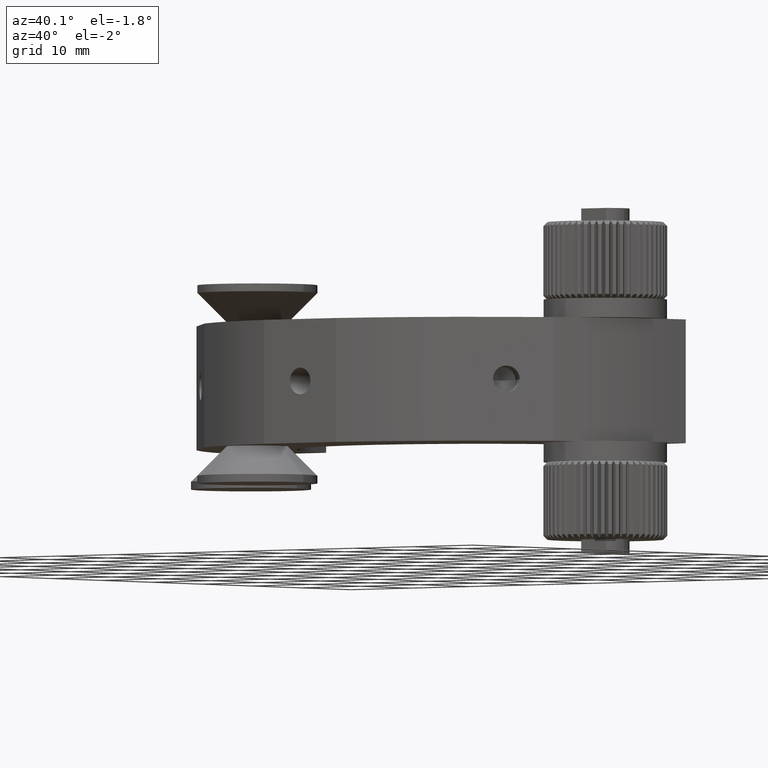
[diagram: clean part render]
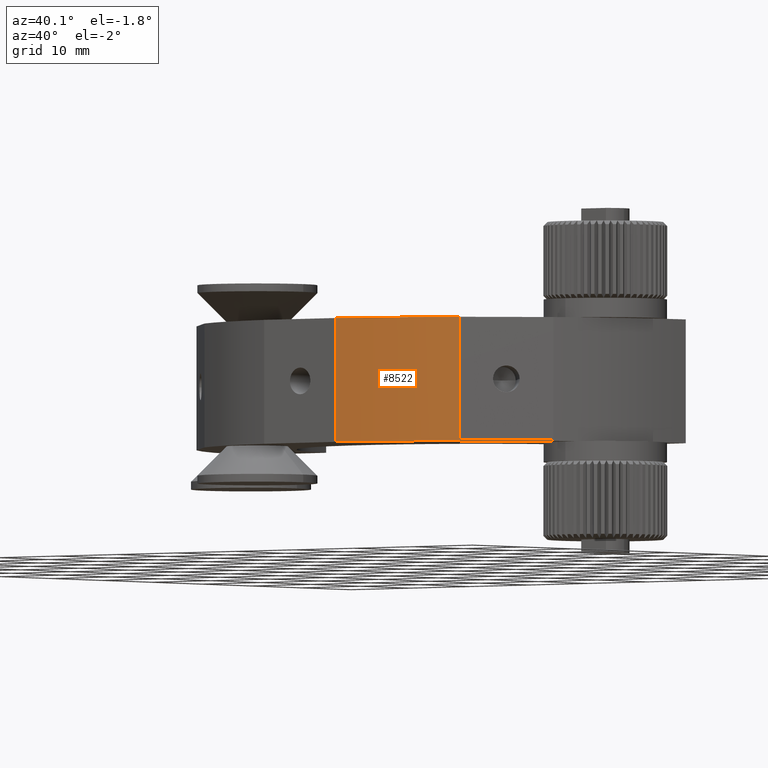
[diagram: same view with one face highlighted and labeled with its STEP entity id]
A machine part, auxiliary view. The second image highlights one B-rep face of the part: STEP entity #8522.
In plain terms, the highlighted cylindrical surface (partial cylindrical patch) has radius 37 mm, axis along (-0, -0, -1).
Its self-contained STEP definition (entity closure, byte-faithful):
#70 = DIRECTION ( 'NONE',  ( 1.000000000000000000, 0.0000000000000000000, 0.0000000000000000000 ) ) ;
#603 = CYLINDRICAL_SURFACE ( 'NONE', #15941, 36.99999999999997900 ) ;
#1036 = FACE_OUTER_BOUND ( 'NONE', #13470, .T. ) ;
#1563 = CARTESIAN_POINT ( 'NONE',  ( 2.679613284590009600, 1.898059409918034800, -8.000000000000000000 ) ) ;
#1724 = VERTEX_POINT ( 'NONE', #17830 ) ;
#2478 = VECTOR ( 'NONE', #13412, 1000.000000000000000 ) ;
#4035 = EDGE_CURVE ( 'NONE', #5484, #1724, #10028, .T. ) ;
#4171 = DIRECTION ( 'NONE',  ( 0.0000000000000000000, 0.0000000000000000000, 1.000000000000000000 ) ) ;
#4513 = VERTEX_POINT ( 'NONE', #17801 ) ;
#5027 = DIRECTION ( 'NONE',  ( -0.0000000000000000000, -0.0000000000000000000, -1.000000000000000000 ) ) ;
#5484 = VERTEX_POINT ( 'NONE', #10788 ) ;
#5486 = DIRECTION ( 'NONE',  ( 0.0000000000000000000, 0.0000000000000000000, 1.000000000000000000 ) ) ;
#5828 = VECTOR ( 'NONE', #11421, 1000.000000000000000 ) ;
#6267 = LINE ( 'NONE', #15557, #5828 ) ;
#6968 = EDGE_CURVE ( 'NONE', #5484, #4513, #6267, .T. ) ;
#8239 = ORIENTED_EDGE ( 'NONE', *, *, #13438, .T. ) ;
#8522 = ADVANCED_FACE ( 'NONE', ( #1036 ), #603, .T. ) ;
#8683 = VERTEX_POINT ( 'NONE', #13693 ) ;
#9683 = AXIS2_PLACEMENT_3D ( 'NONE', #1563, #4171, #70 ) ;
#10028 = CIRCLE ( 'NONE', #17939, 36.99999999999997900 ) ;
#10556 = CARTESIAN_POINT ( 'NONE',  ( 24.20240374802847700, -28.19794515326142900, 8.000000000000000000 ) ) ;
#10718 = CARTESIAN_POINT ( 'NONE',  ( 2.679613284590009600, 1.898059409918034800, 8.000000000000000000 ) ) ;
#10788 = CARTESIAN_POINT ( 'NONE',  ( 8.741791111081948200, -34.60194059008180300, 8.000000000000000000 ) ) ;
#10916 = EDGE_CURVE ( 'NONE', #1724, #8683, #10961, .T. ) ;
#10961 = LINE ( 'NONE', #10556, #2478 ) ;
#11421 = DIRECTION ( 'NONE',  ( -0.0000000000000000000, -0.0000000000000000000, -1.000000000000000000 ) ) ;
#12330 = CARTESIAN_POINT ( 'NONE',  ( 2.679613284590009600, 1.898059409918034800, 8.000000000000000000 ) ) ;
#13412 = DIRECTION ( 'NONE',  ( -0.0000000000000000000, -0.0000000000000000000, -1.000000000000000000 ) ) ;
#13438 = EDGE_CURVE ( 'NONE', #4513, #8683, #15227, .T. ) ;
#13470 = EDGE_LOOP ( 'NONE', ( #8239, #15460, #17101, #15652 ) ) ;
#13693 = CARTESIAN_POINT ( 'NONE',  ( 24.20240374802847700, -28.19794515326142900, -8.000000000000000000 ) ) ;
#13736 = DIRECTION ( 'NONE',  ( 1.000000000000000000, 0.0000000000000000000, 0.0000000000000000000 ) ) ;
#14905 = DIRECTION ( 'NONE',  ( -1.000000000000000000, 0.0000000000000000000, 0.0000000000000000000 ) ) ;
#15227 = CIRCLE ( 'NONE', #9683, 36.99999999999997900 ) ;
#15460 = ORIENTED_EDGE ( 'NONE', *, *, #10916, .F. ) ;
#15557 = CARTESIAN_POINT ( 'NONE',  ( 8.741791111081948200, -34.60194059008180300, 8.000000000000000000 ) ) ;
#15652 = ORIENTED_EDGE ( 'NONE', *, *, #6968, .T. ) ;
#15941 = AXIS2_PLACEMENT_3D ( 'NONE', #10718, #5027, #14905 ) ;
#17101 = ORIENTED_EDGE ( 'NONE', *, *, #4035, .F. ) ;
#17801 = CARTESIAN_POINT ( 'NONE',  ( 8.741791111081948200, -34.60194059008180300, -8.000000000000000000 ) ) ;
#17830 = CARTESIAN_POINT ( 'NONE',  ( 24.20240374802847700, -28.19794515326142900, 8.000000000000000000 ) ) ;
#17939 = AXIS2_PLACEMENT_3D ( 'NONE', #12330, #5486, #13736 ) ;